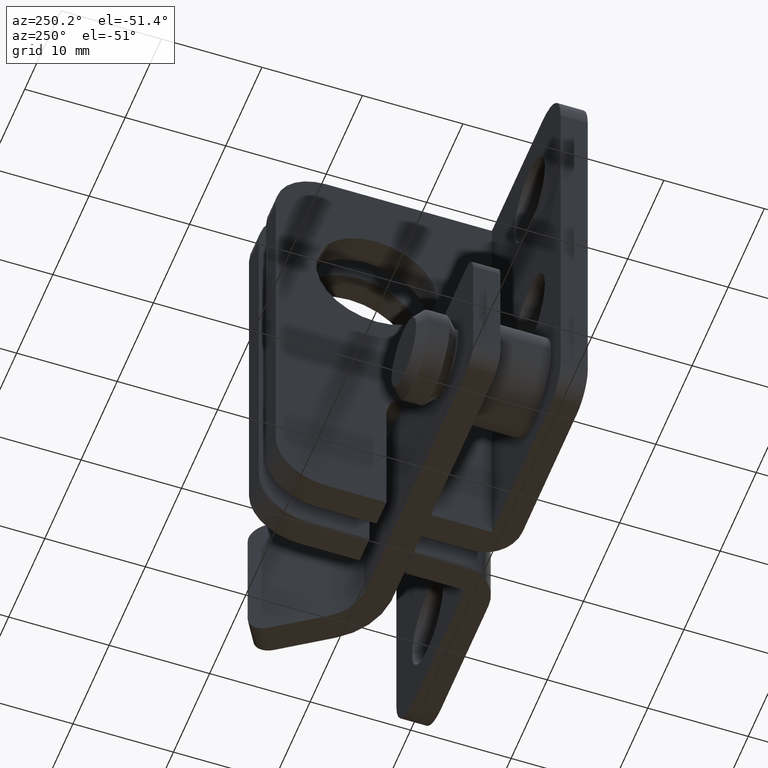
[diagram: clean part render]
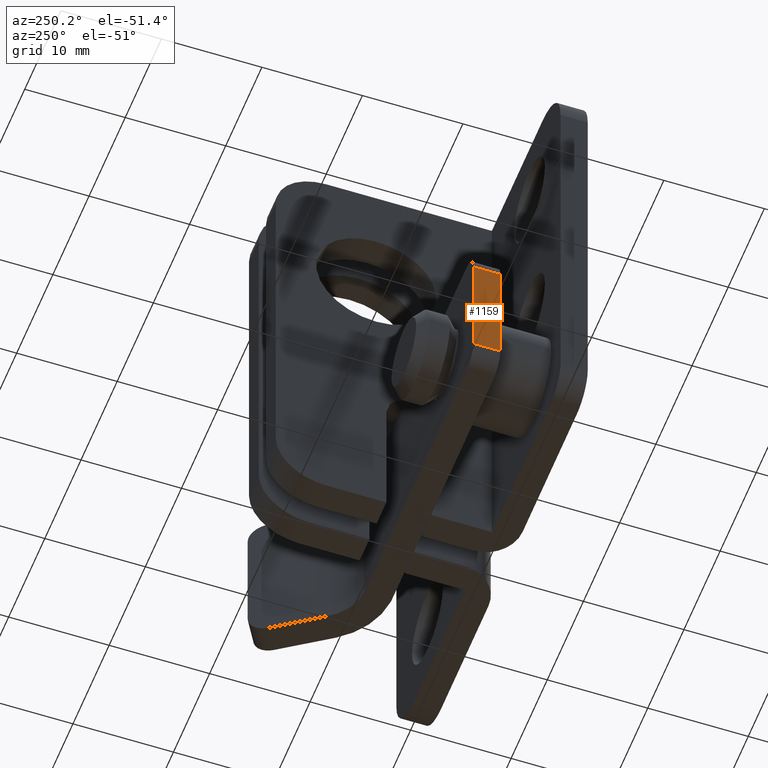
[diagram: same view with one face highlighted and labeled with its STEP entity id]
A machine part, auxiliary view. The second image highlights one B-rep face of the part: STEP entity #1159.
In plain terms, the highlighted planar face has unit normal (-1, -0, 0).
Its self-contained STEP definition (entity closure, byte-faithful):
#105=PLANE('',#1289);
#168=FACE_OUTER_BOUND('',#265,.T.);
#265=EDGE_LOOP('',(#1035,#1036,#1037,#1038));
#352=LINE('',#1960,#442);
#353=LINE('',#1963,#443);
#356=LINE('',#1971,#446);
#357=LINE('',#1972,#447);
#442=VECTOR('',#1618,2.7);
#443=VECTOR('',#1621,11.5);
#446=VECTOR('',#1628,11.5);
#447=VECTOR('',#1629,2.7);
#610=VERTEX_POINT('',#1956);
#611=VERTEX_POINT('',#1958);
#612=VERTEX_POINT('',#1962);
#615=VERTEX_POINT('',#1970);
#755=EDGE_CURVE('',#611,#610,#352,.T.);
#756=EDGE_CURVE('',#612,#610,#353,.T.);
#760=EDGE_CURVE('',#615,#611,#356,.T.);
#761=EDGE_CURVE('',#612,#615,#357,.T.);
#1035=ORIENTED_EDGE('',*,*,#755,.F.);
#1036=ORIENTED_EDGE('',*,*,#760,.F.);
#1037=ORIENTED_EDGE('',*,*,#761,.F.);
#1038=ORIENTED_EDGE('',*,*,#756,.T.);
#1159=ADVANCED_FACE('',(#168),#105,.T.);
#1289=AXIS2_PLACEMENT_3D('',#1969,#1626,#1627);
#1618=DIRECTION('',(-3.06161699786838E-16,1.,0.));
#1621=DIRECTION('',(0.,0.,-1.));
#1626=DIRECTION('center_axis',(-1.,-3.06161699786838E-16,0.));
#1627=DIRECTION('ref_axis',(-3.06161699786838E-16,1.,0.));
#1628=DIRECTION('',(0.,0.,-1.));
#1629=DIRECTION('',(3.06161699786838E-16,-1.,0.));
#1956=CARTESIAN_POINT('',(-8.26636589424463E-16,2.7,-13.5));
#1958=CARTESIAN_POINT('',(0.,0.,-13.5));
#1960=CARTESIAN_POINT('',(-5.55111512312578E-16,1.38394952254943,-13.5));
#1962=CARTESIAN_POINT('',(-8.26636589424463E-16,2.7,-2.));
#1963=CARTESIAN_POINT('',(-8.26636589424463E-16,2.7,0.));
#1969=CARTESIAN_POINT('Origin',(0.,0.,0.));
#1970=CARTESIAN_POINT('',(0.,0.,-2.));
#1971=CARTESIAN_POINT('',(0.,0.,0.));
#1972=CARTESIAN_POINT('',(-5.55111512312578E-16,1.38394952254943,-2.));